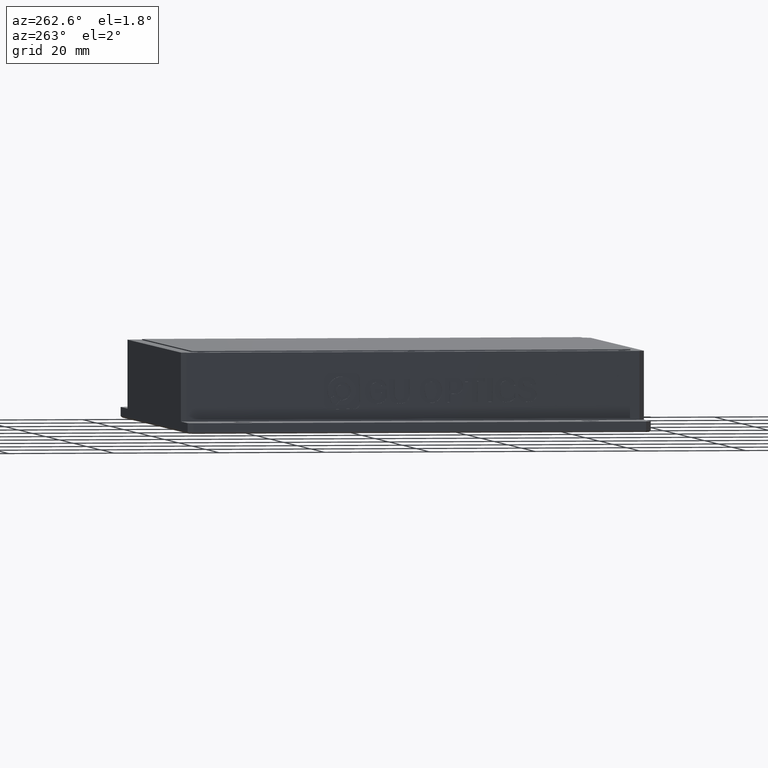
[diagram: clean part render]
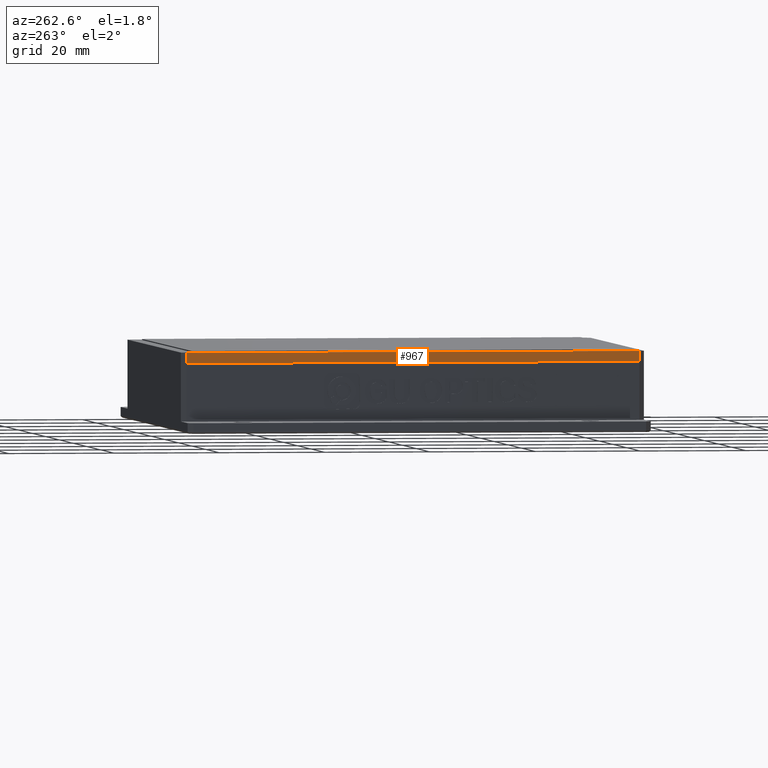
[diagram: same view with one face highlighted and labeled with its STEP entity id]
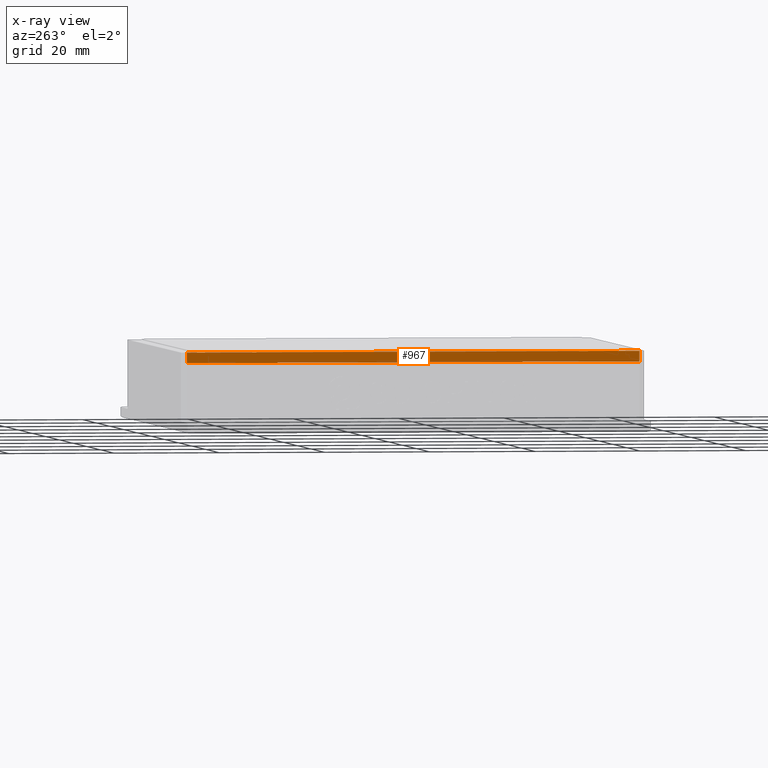
[diagram: x-ray of the same camera — body ghosted, the highlighted face saturated]
A machine part, auxiliary view. The second image highlights one B-rep face of the part: STEP entity #967.
The next image is the same camera in x-ray: the body ghosted, the highlighted face saturated — about 0% of this face is hidden behind the body in this view.
In plain terms, the highlighted planar face has unit normal (1, -0, -0).
Its self-contained STEP definition (entity closure, byte-faithful):
#749 = VERTEX_POINT ( 'NONE', #6154 ) ;
#967 = ADVANCED_FACE ( 'NONE', ( #17085 ), #8186, .F. ) ;
#1024 = EDGE_CURVE ( 'NONE', #15221, #16030, #10564, .T. ) ;
#2043 = CARTESIAN_POINT ( 'NONE',  ( -22.94768995799933400, -48.20007636502474200, 10.99999999999545100 ) ) ;
#2168 = DIRECTION ( 'NONE',  ( 1.000000000000000000, -7.594934782094821800E-016, -0.0000000000000000000 ) ) ;
#2232 = DIRECTION ( 'NONE',  ( -7.594934782094821800E-016, -1.000000000000000000, 0.0000000000000000000 ) ) ;
#2849 = LINE ( 'NONE', #16973, #6603 ) ;
#4252 = AXIS2_PLACEMENT_3D ( 'NONE', #2043, #2168, #2232 ) ;
#4921 = CARTESIAN_POINT ( 'NONE',  ( -22.94768995799926300, 38.79992363497524400, 10.99999999999545100 ) ) ;
#4947 = VECTOR ( 'NONE', #10426, 1000.000000000000000 ) ;
#5178 = CARTESIAN_POINT ( 'NONE',  ( -22.94768995799933400, -47.20007636502472800, 10.99999999999545100 ) ) ;
#5226 = CARTESIAN_POINT ( 'NONE',  ( -22.94768995799933400, -47.20007636502474900, 10.99999999999545100 ) ) ;
#6020 = DIRECTION ( 'NONE',  ( 0.0000000000000000000, 0.0000000000000000000, -1.000000000000000000 ) ) ;
#6127 = ORIENTED_EDGE ( 'NONE', *, *, #8560, .F. ) ;
#6154 = CARTESIAN_POINT ( 'NONE',  ( -22.94768995799926300, 38.79992363497525800, 10.99999999999545100 ) ) ;
#6259 = LINE ( 'NONE', #9411, #9916 ) ;
#6603 = VECTOR ( 'NONE', #7527, 1000.000000000000000 ) ;
#6940 = VECTOR ( 'NONE', #6020, 1000.000000000000000 ) ;
#7527 = DIRECTION ( 'NONE',  ( 7.594934782094821800E-016, 1.000000000000000000, -0.0000000000000000000 ) ) ;
#8186 = PLANE ( 'NONE',  #4252 ) ;
#8560 = EDGE_CURVE ( 'NONE', #9548, #15221, #6259, .T. ) ;
#9119 = ORIENTED_EDGE ( 'NONE', *, *, #16732, .F. ) ;
#9222 = CARTESIAN_POINT ( 'NONE',  ( -22.94768995799926300, 38.79992363497525800, 12.99999999999545100 ) ) ;
#9411 = CARTESIAN_POINT ( 'NONE',  ( -22.94768995799926300, 39.79992363497525800, 12.99999999999545100 ) ) ;
#9548 = VERTEX_POINT ( 'NONE', #9222 ) ;
#9916 = VECTOR ( 'NONE', #17457, 1000.000000000000000 ) ;
#10426 = DIRECTION ( 'NONE',  ( -0.0000000000000000000, -0.0000000000000000000, 1.000000000000000000 ) ) ;
#10564 = LINE ( 'NONE', #5178, #6940 ) ;
#11671 = ORIENTED_EDGE ( 'NONE', *, *, #1024, .F. ) ;
#12617 = LINE ( 'NONE', #4921, #4947 ) ;
#12766 = EDGE_LOOP ( 'NONE', ( #15289, #9119, #11671, #6127 ) ) ;
#12876 = CARTESIAN_POINT ( 'NONE',  ( -22.94768995799931900, -47.20007636502475600, 12.99999999999545100 ) ) ;
#13093 = EDGE_CURVE ( 'NONE', #749, #9548, #12617, .T. ) ;
#15221 = VERTEX_POINT ( 'NONE', #12876 ) ;
#15289 = ORIENTED_EDGE ( 'NONE', *, *, #13093, .F. ) ;
#16030 = VERTEX_POINT ( 'NONE', #5226 ) ;
#16732 = EDGE_CURVE ( 'NONE', #16030, #749, #2849, .T. ) ;
#16973 = CARTESIAN_POINT ( 'NONE',  ( -22.94768995799933400, -48.20007636502474200, 10.99999999999545100 ) ) ;
#17085 = FACE_OUTER_BOUND ( 'NONE', #12766, .T. ) ;
#17457 = DIRECTION ( 'NONE',  ( -4.440892098500626200E-016, -1.000000000000000000, -0.0000000000000000000 ) ) ;